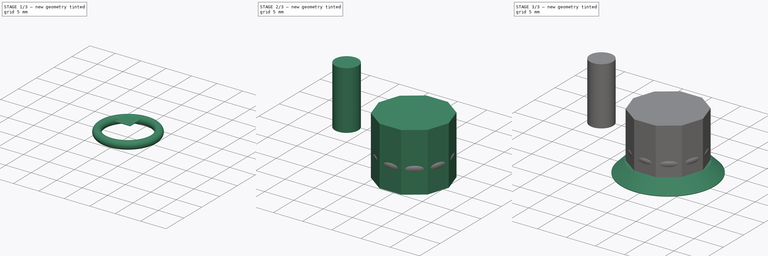
[diagram: build sequence overview — one tinted view per stage of 3, left to right]
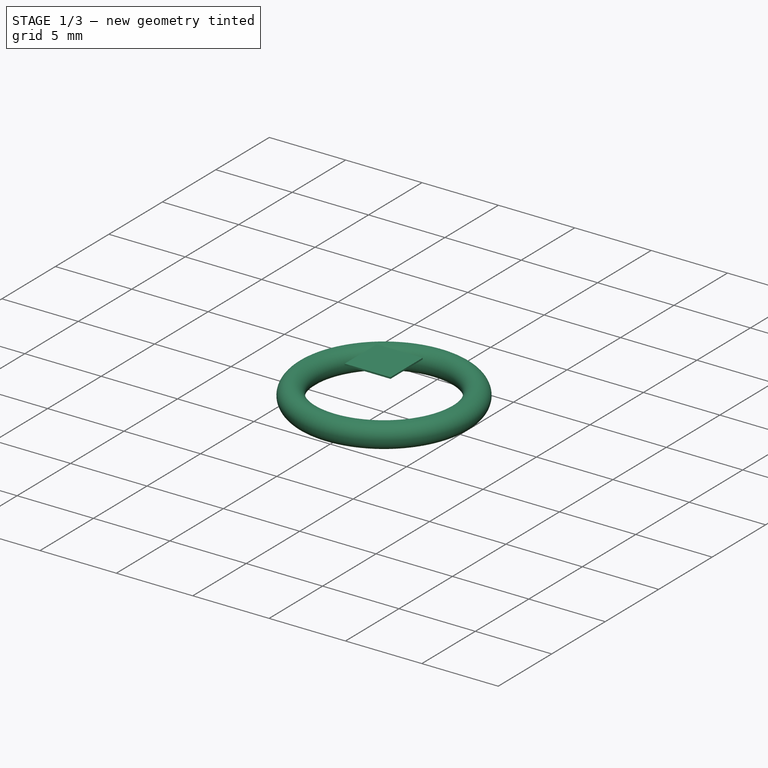
[diagram: stage 1 of 3 — iso view after this stage's code; geometry added in this stage tinted green]
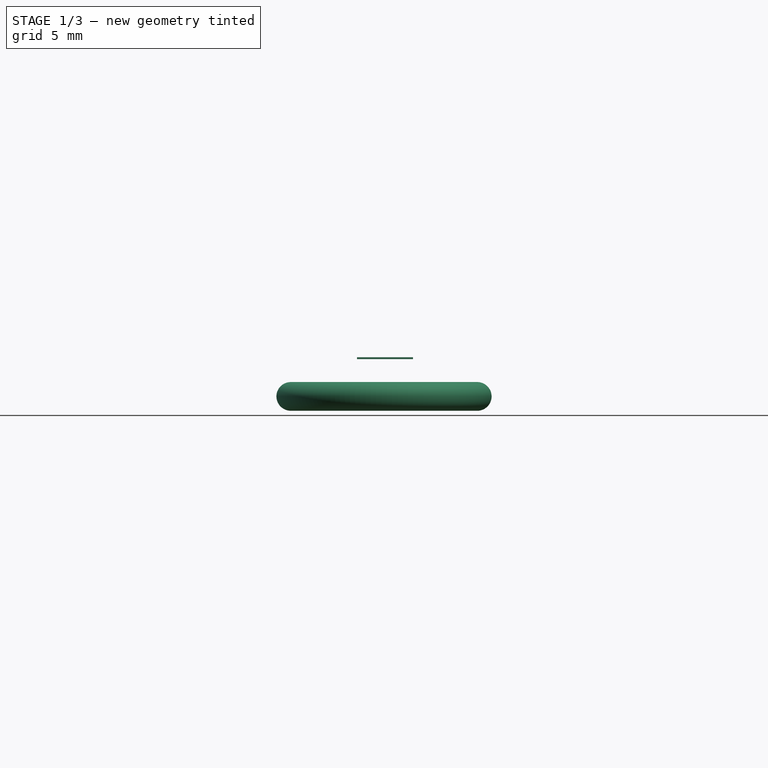
[diagram: stage 1 of 3 — front view after this stage's code; geometry added in this stage tinted green]
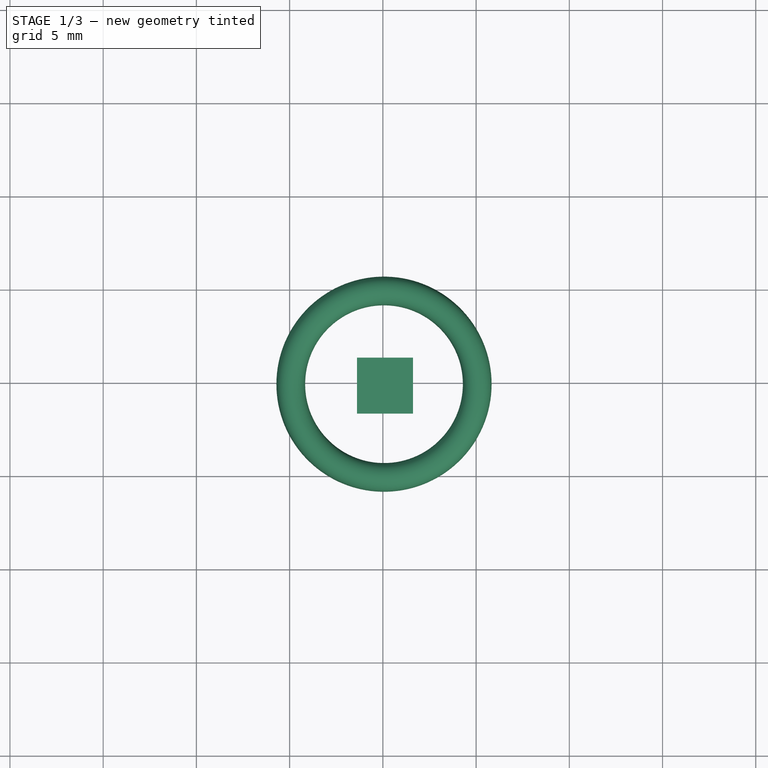
[diagram: stage 1 of 3 — top view after this stage's code; geometry added in this stage tinted green]
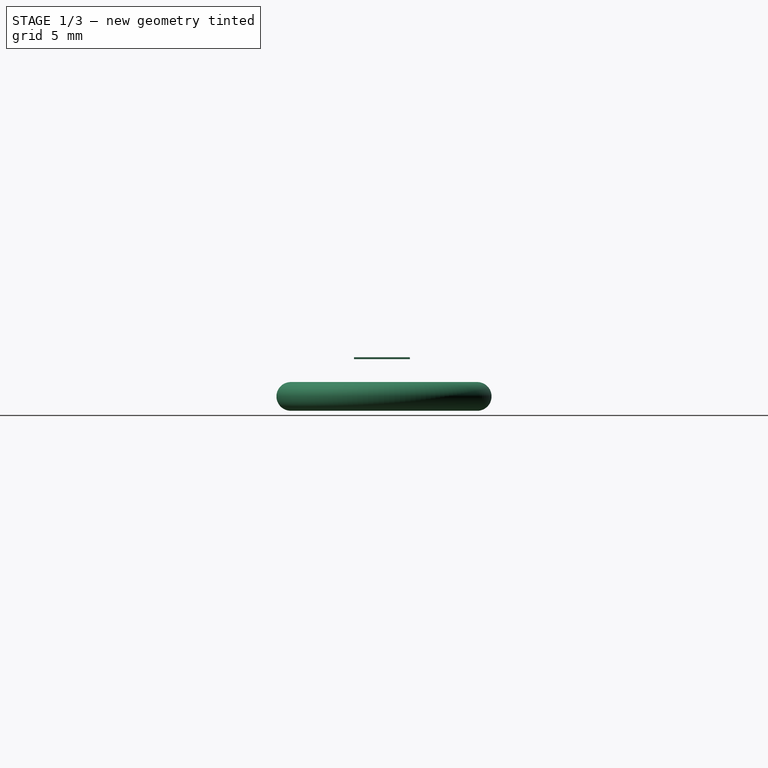
[diagram: stage 1 of 3 — right view after this stage's code; geometry added in this stage tinted green]
FCSTD DOCUMENT  (FreeCAD 0.16R6706 (Git))
Label: Ye's project - 3D
License: All rights reserved
LicenseURL: http://en.wikipedia.org/wiki/All_rights_reserved
objects: Part::Part2DObjectPython×4, Sketcher::SketchObject×1, PartDesign::Pad×1, Part::Chamfer×1, Part::Prism×1, Part::Section×1, Part::Torus×1, Part::Cylinder×1, Part::FeaturePython×1, Part::Box×1
note: 14 computed .brp shape members not serialized (recipe doc carries the construction recipe); baked Part::Feature solids carry a one-line shape summary decoded from their .brp

FEATURE [Part::Section] Section
  Base = -> Pad
  Tool = -> Prism
FEATURE [Part::Torus] Torus
  Angle1 = -180
  Angle2 = 180
  Angle3 = 360
  Placement = pos=(0.0612183,-0.061443,4) rot=(0,0,1;0rad)
  Radius1 = 5
  Radius2 = 0.77
FEATURE [Part::Part2DObjectPython] Shape2DView  # Draft 2D object (typed FeaturePython)
  Base = -> Cylinder
  HiddenLines = false
  Projection = (0.17331,-0.835867,0.520854)
  ProjectionMode = 0
  SegmentLength = 0.05
  Tessellation = false
FEATURE [Part::Box] Box  label="Cube"
  Height = 0.1
  Length = 3
  Placement = pos=(-1.38449,-1.67315,6) rot=(0,0,1;0rad)
  Width = 3
FEATURE [Part::Part2DObjectPython] Line001  # Draft 2D object (typed FeaturePython)
  ChamferSize = 0
  Closed = false
  End = (3.19323,1.40457,0)
  FilletRadius = 0
  Length = 2.23124
  MakeFace = true
  Points = (2) [(1.61551,-0.173153,0),(3.19323,1.40457,0)]
  Start = (1.61551,-0.173153,0)
  Subdivisions = 0
FEATURE [Part::Part2DObjectPython] Line002  # Draft 2D object (typed FeaturePython)
  ChamferSize = 0
  Closed = false
  End = (1.61551,-0.173153,0)
  FilletRadius = 0
  Length = 2.34419
  MakeFace = true
  Points = (2) [(3.36298,1.3894,0),(1.61551,-0.173153,0)]
  Start = (3.36298,1.3894,0)
  Subdivisions = 0
  Support = -> Torus
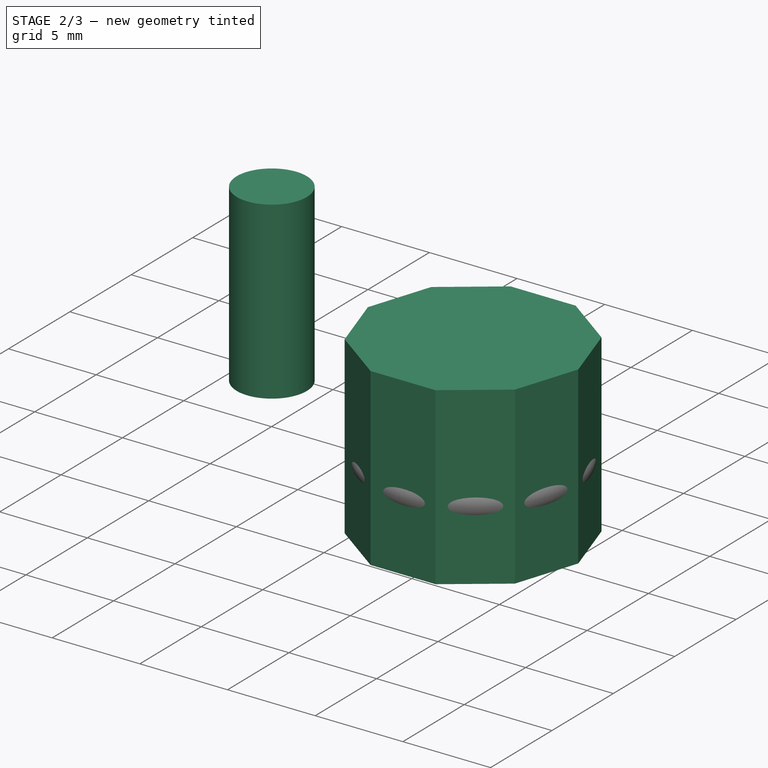
[diagram: stage 2 of 3 — iso view after this stage's code; geometry added in this stage tinted green]
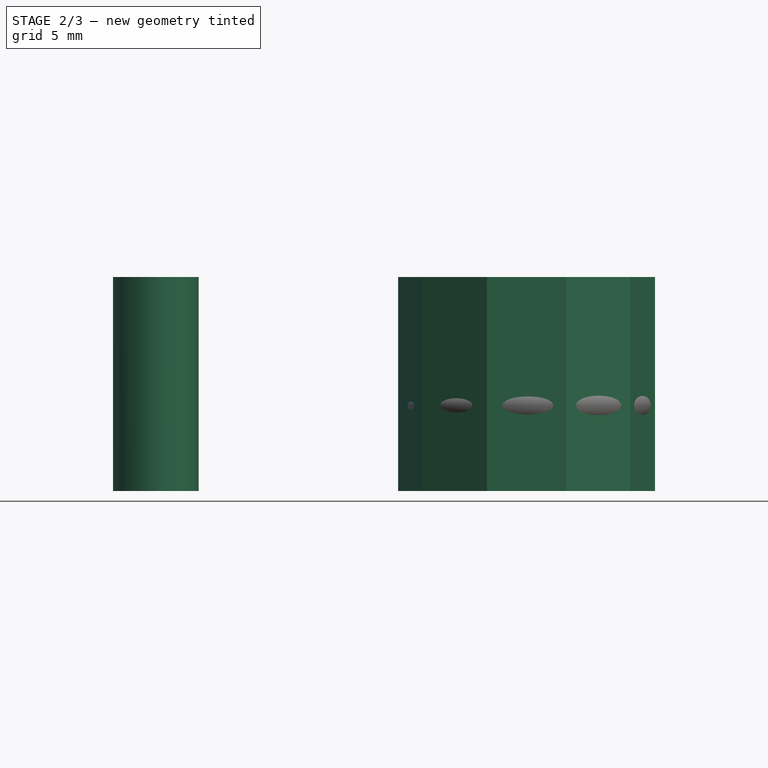
[diagram: stage 2 of 3 — front view after this stage's code; geometry added in this stage tinted green]
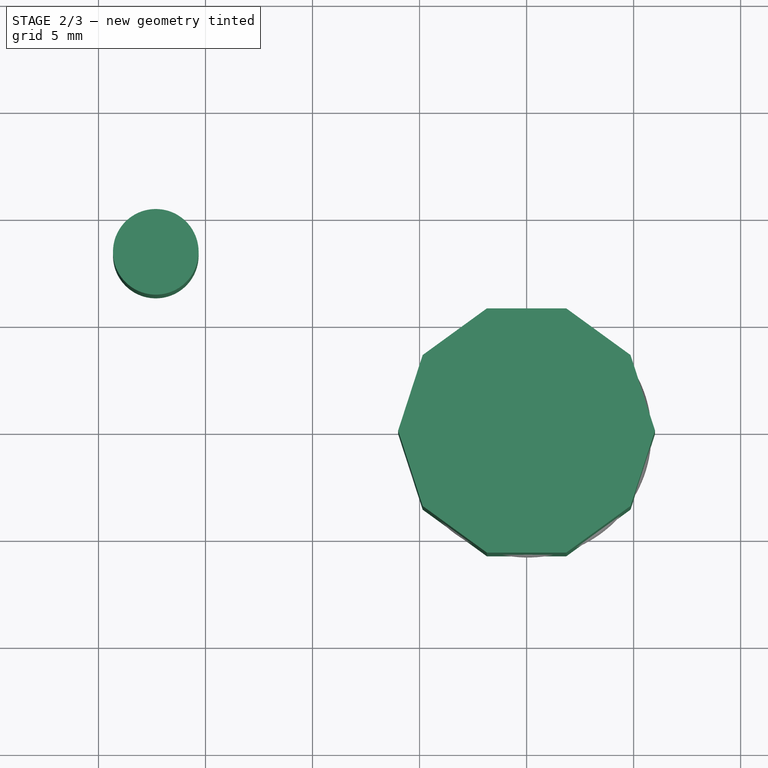
[diagram: stage 2 of 3 — top view after this stage's code; geometry added in this stage tinted green]
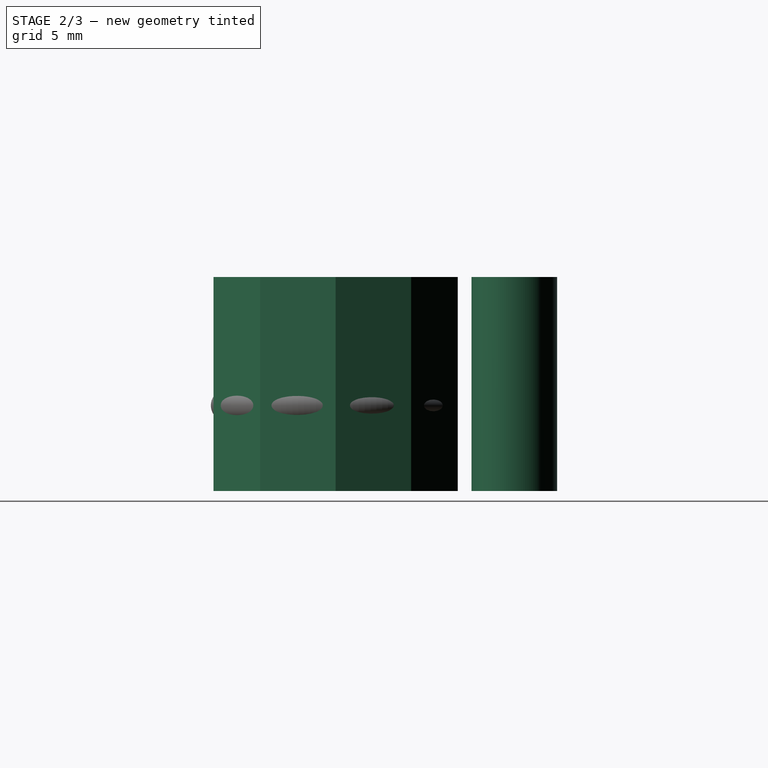
[diagram: stage 2 of 3 — right view after this stage's code; geometry added in this stage tinted green]
FEATURE [Part::Prism] Prism
  Circumradius = 6
  Height = 10
  Polygon = 10
FEATURE [Part::Part2DObjectPython] Rectangle  # Draft 2D object (typed FeaturePython)
  ChamferSize = 0
  Columns = 1
  FilletRadius = 0
  Height = 3
  Length = 3
  MakeFace = true
  Placement = pos=(-17.4156,-4.55455,0) rot=(0,0,1;0rad)
  Rows = 1
FEATURE [Part::Cylinder] Cylinder
  Angle = 360
  Height = 10
  Placement = pos=(-17.3227,8.34736,0) rot=(0,0,1;1.54919rad)
  Radius = 2
FEATURE [Part::FeaturePython] refine  label="refine_Cylinder"  # WARN: FeaturePython — macro-defined, semantics opaque (R4)
  Base = -> Cylinder
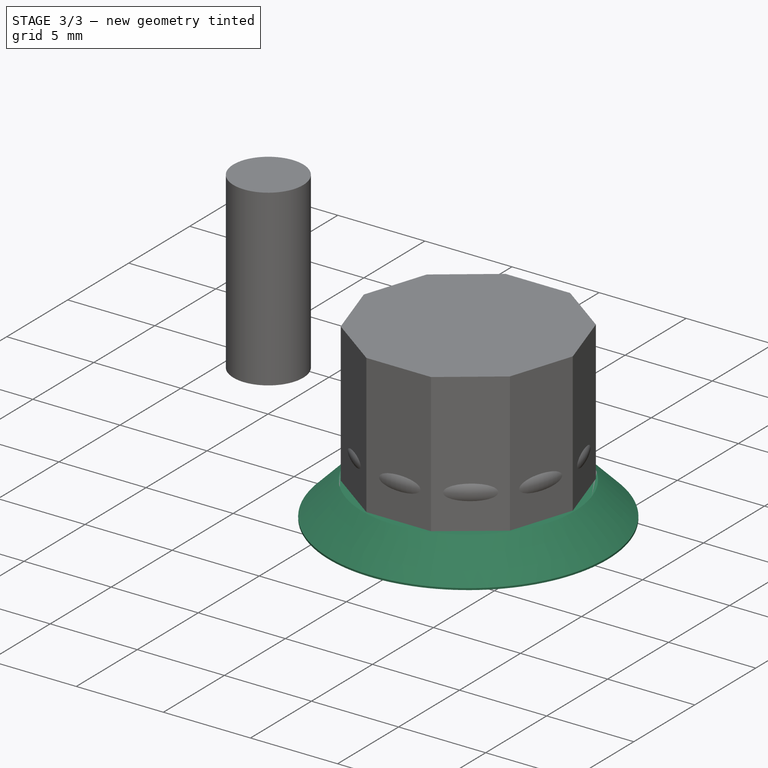
[diagram: stage 3 of 3 — iso view after this stage's code; geometry added in this stage tinted green]
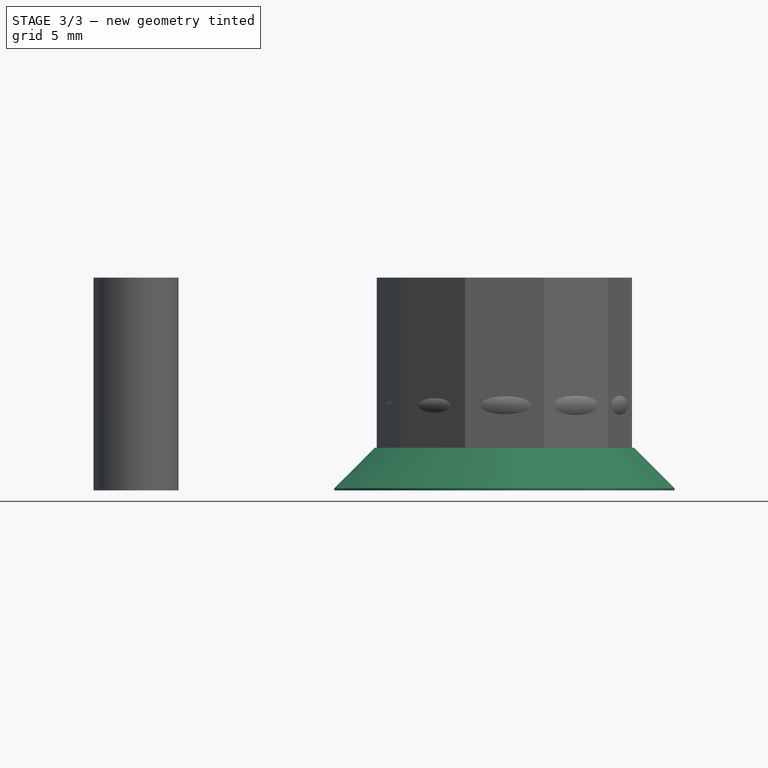
[diagram: stage 3 of 3 — front view after this stage's code; geometry added in this stage tinted green]
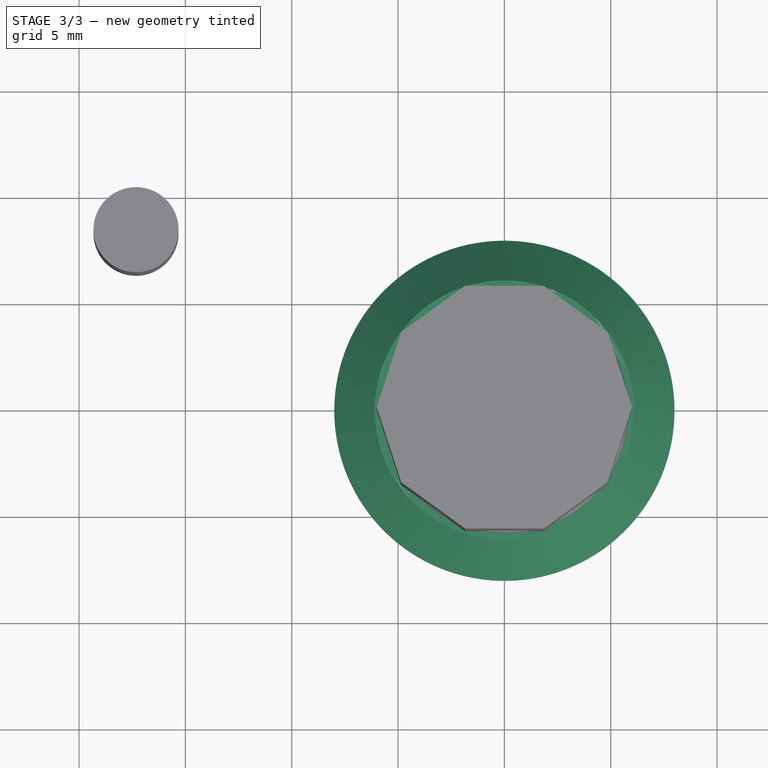
[diagram: stage 3 of 3 — top view after this stage's code; geometry added in this stage tinted green]
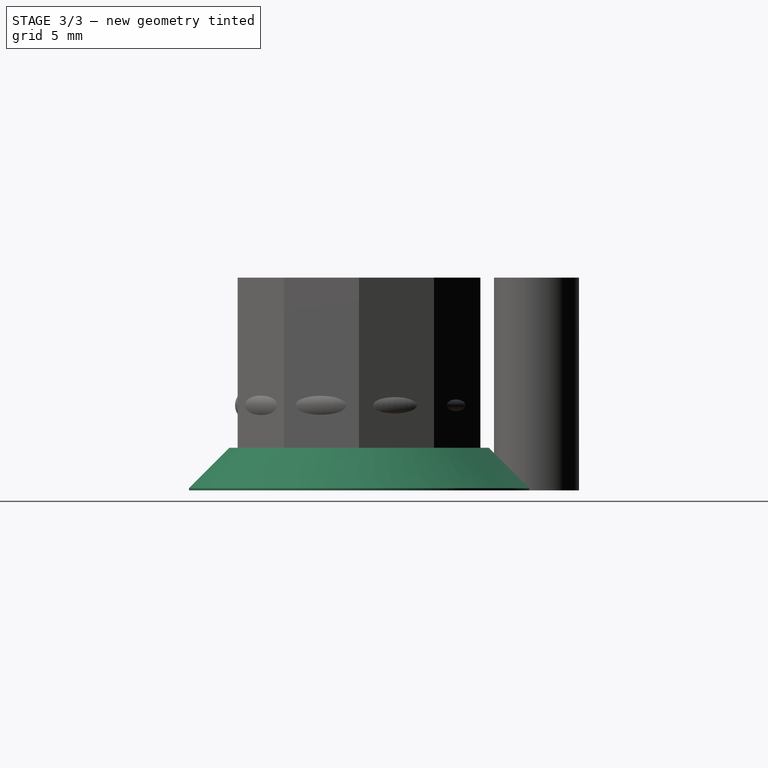
[diagram: stage 3 of 3 — right view after this stage's code; geometry added in this stage tinted green]
FEATURE [Sketcher::SketchObject] Sketch
  sketch-geometry (1):
    g0: Circle CenterX=0 CenterY=0 CenterZ=0 NormalX=0 NormalY=0 NormalZ=1 Radius=8
  constraints (2):
    c: Coincident(g0,g-1)
    c: Radius(g0) = 8
FEATURE [PartDesign::Pad] Pad
  Length = 2
  Length2 = 100
  Sketch = -> Sketch
  Type = 0
  expr: Length = 2
FEATURE [Part::Chamfer] Chamfer
  Base = -> Pad
  Edges = 1 edges r=1.9: [Edge3]
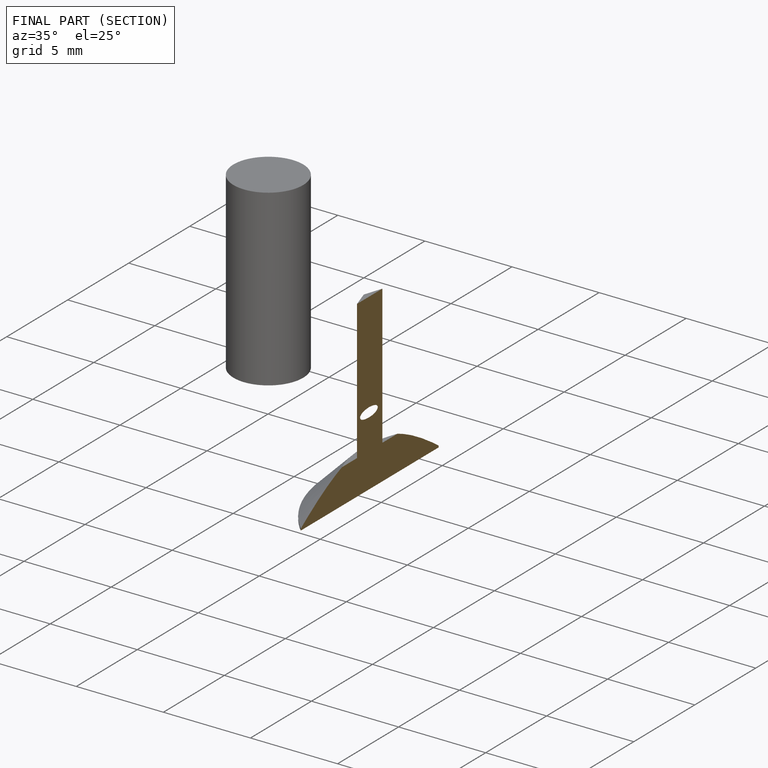
[diagram: finished part — half-section view (interior)]
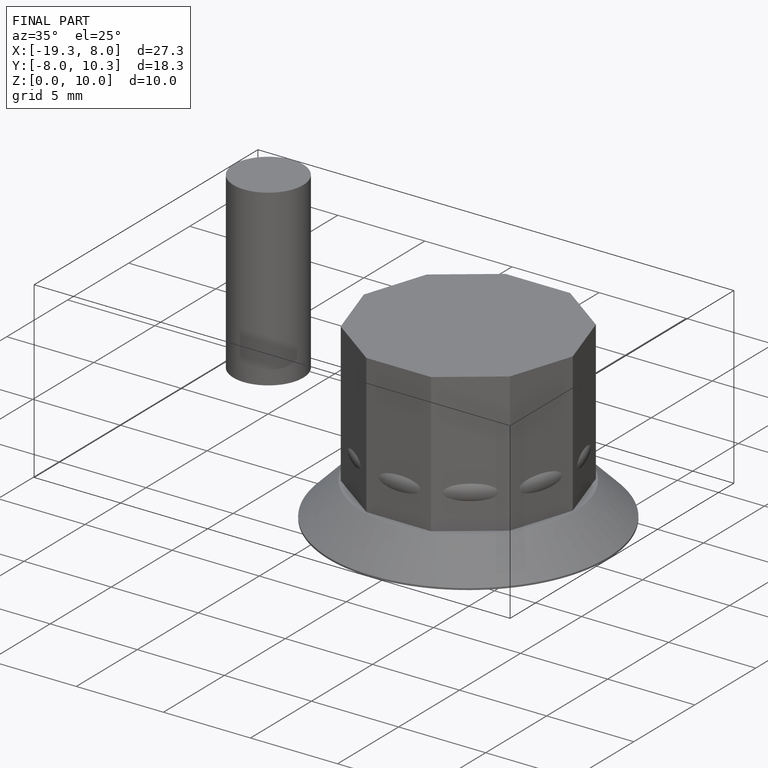
[diagram: finished part — iso view with bounding-box wireframe]
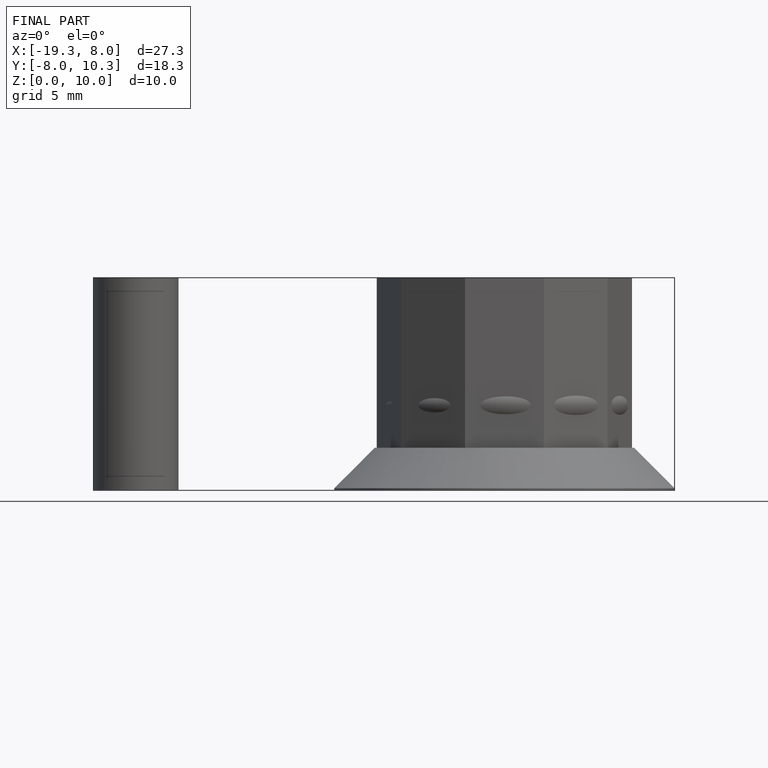
[diagram: finished part — front view with bounding-box wireframe]
